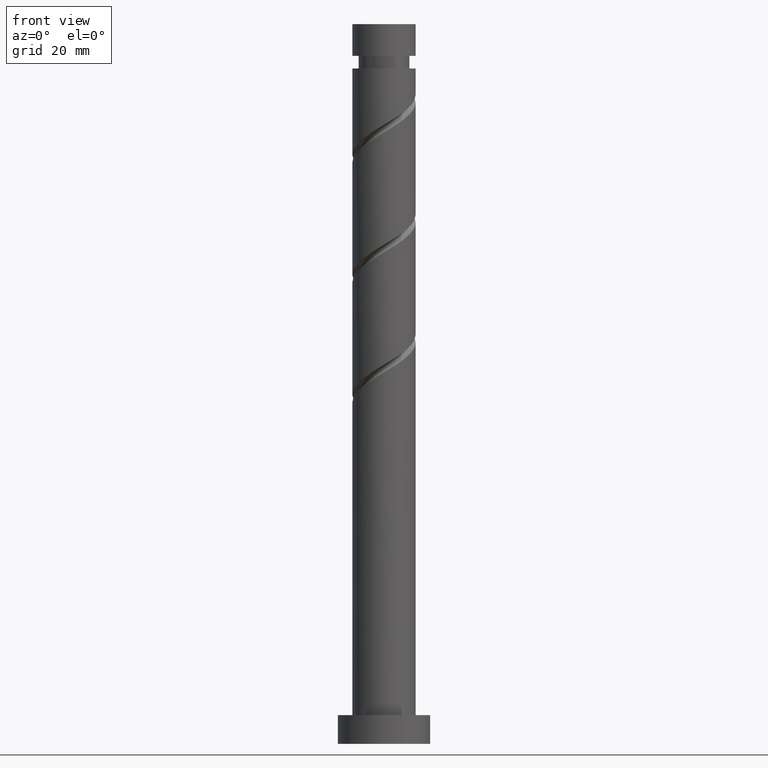
[diagram: clean part render]
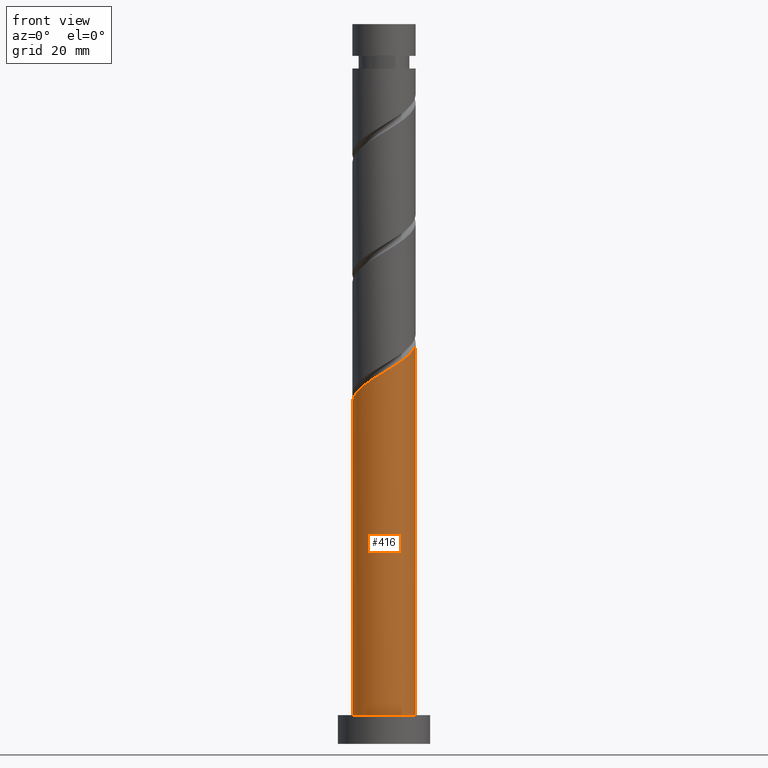
[diagram: same view with one face highlighted and labeled with its STEP entity id]
A machine part, front view. The second image highlights one B-rep face of the part: STEP entity #416.
In plain terms, the highlighted cylindrical surface (edge-blend (fillet) strip) has radius 5.5 mm, axis along (-0, -0, -1).
Its self-contained STEP definition (entity closure, byte-faithful):
#1 = CIRCLE ( 'NONE', #1449, 5.500000000000000000 ) ;
#2 = CARTESIAN_POINT ( 'NONE',  ( -4.787979792849808902, -2.706519813942242170, 61.03761916509251506 ) ) ;
#6 = AXIS2_PLACEMENT_3D ( 'NONE', #827, #1536, #1050 ) ;
#12 = CARTESIAN_POINT ( 'NONE',  ( -3.075248360626016364, -4.642379546774346721, 62.60011916509252217 ) ) ;
#80 = LINE ( 'NONE', #542, #1532 ) ;
#95 = VERTEX_POINT ( 'NONE', #1391 ) ;
#135 = CARTESIAN_POINT ( 'NONE',  ( -5.500000000000005329, -7.166703130372353103E-15, 59.33115005695559319 ) ) ;
#137 = EDGE_CURVE ( 'NONE', #947, #95, #80, .T. ) ;
#142 = CARTESIAN_POINT ( 'NONE',  ( -5.500000000000005329, -7.166703130372353103E-15, 59.33115005695559319 ) ) ;
#147 = CARTESIAN_POINT ( 'NONE',  ( -4.359309166891299547, -3.464861313717948921, 61.55845249842586497 ) ) ;
#241 = CARTESIAN_POINT ( 'NONE',  ( 1.094486180817283882, -5.390000000000004121, 65.20428583175917936 ) ) ;
#259 = CARTESIAN_POINT ( 'NONE',  ( 5.500000000000005329, 6.417047991212065831E-15, 69.74781672362226459 ) ) ;
#265 = CARTESIAN_POINT ( 'NONE',  ( -5.500000000000005329, -0.5527707983925694846, 59.66545463236344204 ) ) ;
#317 = CARTESIAN_POINT ( 'NONE',  ( 5.500000000000005329, 6.417047991212065831E-15, 69.74781672362226459 ) ) ;
#326 = FACE_OUTER_BOUND ( 'NONE', #1442, .T. ) ;
#342 = ORIENTED_EDGE ( 'NONE', *, *, #775, .T. ) ;
#364 = CARTESIAN_POINT ( 'NONE',  ( 2.706519813942241726, -4.787979792849808902, 66.24595249842585076 ) ) ;
#380 = CARTESIAN_POINT ( 'NONE',  ( -5.216650418808320033, -1.948178314166535863, 60.51678583175918646 ) ) ;
#395 = DIRECTION ( 'NONE',  ( -0.000000000000000000, -0.000000000000000000, -1.000000000000000000 ) ) ;
#416 = ADVANCED_FACE ( 'NONE', ( #326 ), #708, .T. ) ;
#417 = DIRECTION ( 'NONE',  ( 0.000000000000000000, 0.000000000000000000, 1.000000000000000000 ) ) ;
#482 = CARTESIAN_POINT ( 'NONE',  ( -3.717278763758657512, -4.053620430246147599, 62.07928583175918646 ) ) ;
#489 = CARTESIAN_POINT ( 'NONE',  ( 3.464861313717947588, -4.359309166891299547, 66.76678583175916515 ) ) ;
#497 = CARTESIAN_POINT ( 'NONE',  ( -5.390000000000004121, -1.094486180817284104, 59.99595249842585076 ) ) ;
#540 = DIRECTION ( 'NONE',  ( -0.000000000000000000, -0.000000000000000000, -1.000000000000000000 ) ) ;
#542 = CARTESIAN_POINT ( 'NONE',  ( 5.500000000000000000, 6.735557395310442023E-16, 125.0000000000000000 ) ) ;
#555 = VECTOR ( 'NONE', #540, 1000.000000000000000 ) ;
#578 = ORIENTED_EDGE ( 'NONE', *, *, #684, .F. ) ;
#605 = CARTESIAN_POINT ( 'NONE',  ( 5.365469324432222464, -1.490160818307421753, 68.85011916509253638 ) ) ;
#629 = LINE ( 'NONE', #1371, #555 ) ;
#684 = EDGE_CURVE ( 'NONE', #1187, #947, #1309, .T. ) ;
#708 = CYLINDRICAL_SURFACE ( 'NONE', #6, 5.500000000000000000 ) ;
#712 = EDGE_CURVE ( 'NONE', #1187, #1470, #629, .T. ) ;
#775 = EDGE_CURVE ( 'NONE', #1470, #95, #1, .T. ) ;
#827 = CARTESIAN_POINT ( 'NONE',  ( 0.000000000000000000, 0.000000000000000000, 125.0000000000000000 ) ) ;
#838 = CARTESIAN_POINT ( 'NONE',  ( -2.282704589466718836, -5.003924435603282816, 63.12095249842585076 ) ) ;
#844 = CARTESIAN_POINT ( 'NONE',  ( 4.053620430246147599, -3.717278763758657512, 67.28761916509252217 ) ) ;
#848 = CARTESIAN_POINT ( 'NONE',  ( -5.500000000000000000, 0.000000000000000000, 5.000000000000000000 ) ) ;
#894 = DIRECTION ( 'NONE',  ( 1.000000000000000000, 0.000000000000000000, 0.000000000000000000 ) ) ;
#932 = ORIENTED_EDGE ( 'NONE', *, *, #137, .F. ) ;
#947 = VERTEX_POINT ( 'NONE', #317 ) ;
#949 = CARTESIAN_POINT ( 'NONE',  ( -1.490160818307421531, -5.365469324432220688, 63.64178583175920068 ) ) ;
#975 = CARTESIAN_POINT ( 'NONE',  ( 1.948178314166534975, -5.216650418808320033, 65.72511916509252217 ) ) ;
#990 = CARTESIAN_POINT ( 'NONE',  ( 0.000000000000000000, 0.000000000000000000, 5.000000000000000000 ) ) ;
#1050 = DIRECTION ( 'NONE',  ( -1.000000000000000000, 0.000000000000000000, 0.000000000000000000 ) ) ;
#1099 = CARTESIAN_POINT ( 'NONE',  ( 5.464409452811954893, -0.6246833854196948144, 69.37095249842586497 ) ) ;
#1187 = VERTEX_POINT ( 'NONE', #142 ) ;
#1309 =( BOUNDED_CURVE ( )  B_SPLINE_CURVE ( 2, ( #135, #265, #497, #380, #2, #147, #482, #12, #838, #949, #1460, #1329, #241, #975, #364, #489, #844, #1355, #1475, #605, #1099, #1467, #259 ),
 .UNSPECIFIED., .F., .T. ) 
 B_SPLINE_CURVE_WITH_KNOTS ( ( 3, 2, 2, 2, 2, 2, 2, 2, 2, 2, 2, 3 ),
 ( 0.05453220231385522143, 0.06250000000000000000, 0.07499999999999995559, 0.08750000000000002220, 0.09999999999999997780, 0.1125000000000000444, 0.1250000000000000000, 0.1374999999999999556, 0.1500000000000000222, 0.1624999999999999778, 0.1750000000000000444, 0.1795322023138551659 ),
 .UNSPECIFIED. ) 
 CURVE ( )  GEOMETRIC_REPRESENTATION_ITEM ( )  RATIONAL_B_SPLINE_CURVE ( ( 0.9039174447099376231, 0.9019565955404669211, 0.9090909090909153889, 0.8978984914501313419, 0.9090909090909153889, 0.8978984914501313419, 0.9090909090909153889, 0.8978984914501313419, 0.9090909090909153889, 0.8978984914501313419, 0.9090909090909153889, 0.8978984914501313419, 0.9090909090909153889, 0.8978984914501313419, 0.9090909090909153889, 0.8978984914501313419, 0.9090909090909153889, 0.8978984914501313419, 0.9090909090909153889, 0.8978984914501313419, 0.9090909090909153889, 0.9050328050005798097, 0.9039174447099375120 ) ) 
 REPRESENTATION_ITEM ( '' )  );
#1329 = CARTESIAN_POINT ( 'NONE',  ( 0.2407940474680323184, -5.563349581191688209, 64.68345249842585076 ) ) ;
#1332 = ORIENTED_EDGE ( 'NONE', *, *, #712, .T. ) ;
#1355 = CARTESIAN_POINT ( 'NONE',  ( 4.642379546774347610, -3.075248360626016364, 67.80845249842587918 ) ) ;
#1371 = CARTESIAN_POINT ( 'NONE',  ( -5.500000000000000000, 0.000000000000000000, 125.0000000000000000 ) ) ;
#1391 = CARTESIAN_POINT ( 'NONE',  ( 5.500000000000000000, 6.735557395310442023E-16, 5.000000000000000000 ) ) ;
#1442 = EDGE_LOOP ( 'NONE', ( #932, #578, #1332, #342 ) ) ;
#1449 = AXIS2_PLACEMENT_3D ( 'NONE', #990, #417, #894 ) ;
#1460 = CARTESIAN_POINT ( 'NONE',  ( -0.6246833854196944813, -5.464409452811954893, 64.16261916509250796 ) ) ;
#1467 = CARTESIAN_POINT ( 'NONE',  ( 5.500000000000005329, -0.3133555559553833358, 69.55830563441499237 ) ) ;
#1470 = VERTEX_POINT ( 'NONE', #848 ) ;
#1475 = CARTESIAN_POINT ( 'NONE',  ( 5.003924435603282816, -2.282704589466718836, 68.32928583175917936 ) ) ;
#1532 = VECTOR ( 'NONE', #395, 1000.000000000000000 ) ;
#1536 = DIRECTION ( 'NONE',  ( -0.000000000000000000, -0.000000000000000000, -1.000000000000000000 ) ) ;